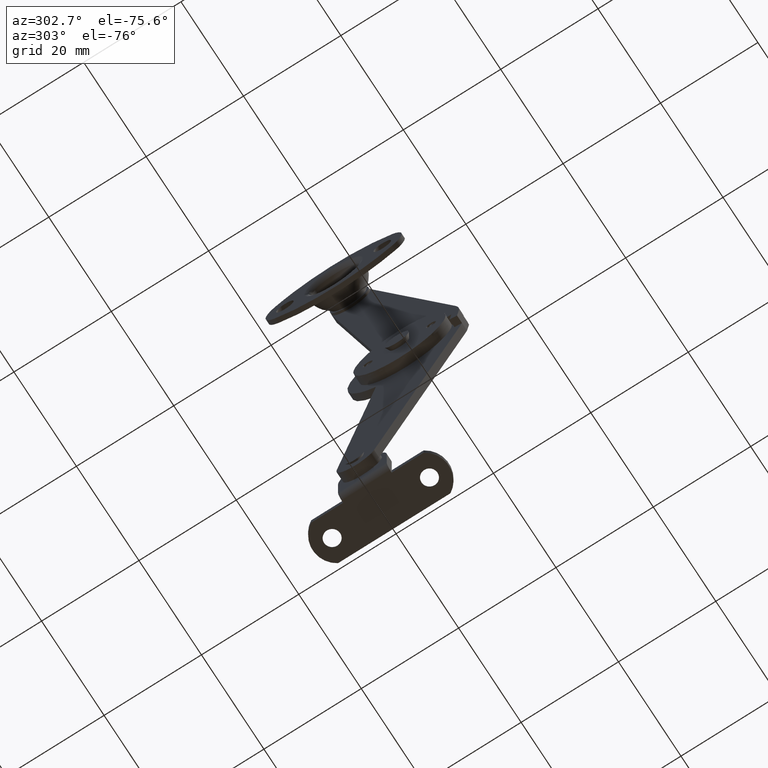
[diagram: clean part render]
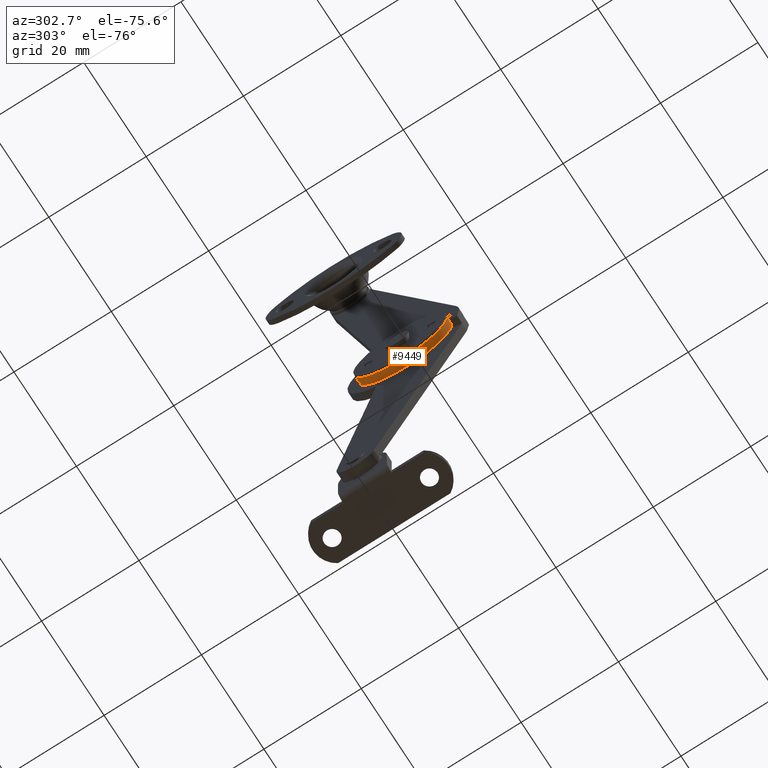
[diagram: same view with one face highlighted and labeled with its STEP entity id]
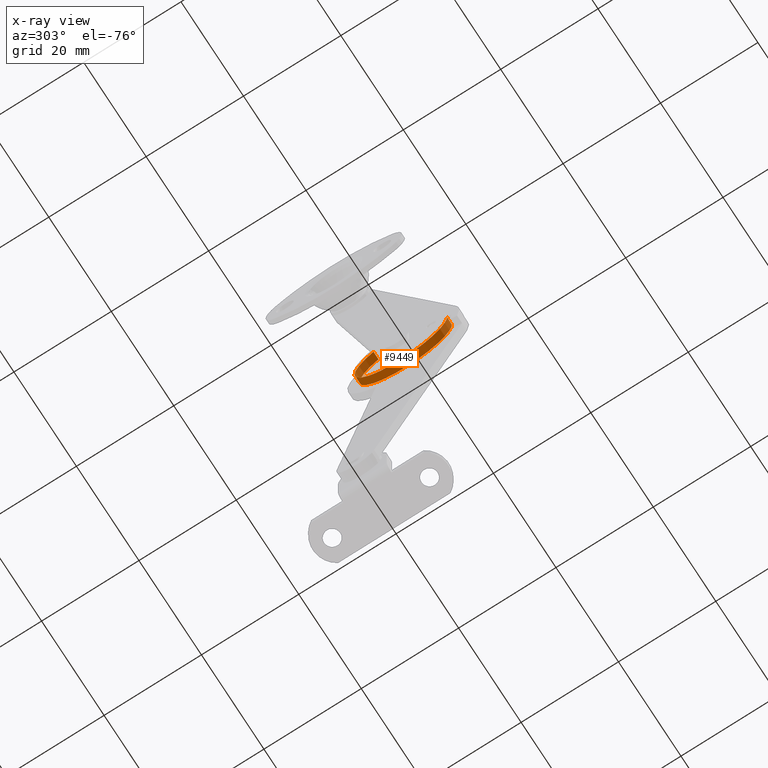
[diagram: x-ray of the same camera — body ghosted, the highlighted face saturated]
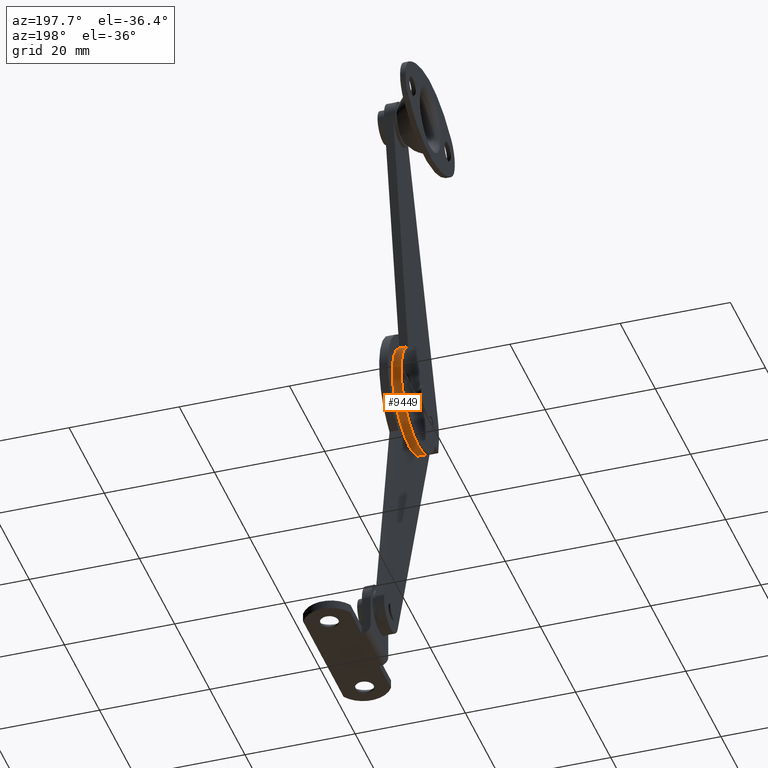
[diagram: same view with one face highlighted and labeled with its STEP entity id]
A machine part, auxiliary view. The second image highlights one B-rep face of the part: STEP entity #9449.
The next image is the same camera in x-ray: the body ghosted, the highlighted face saturated — about 0% of this face is hidden behind the body in this view.
A second angle (auxiliary view) of the same face is appended — the face is thin or edge-on in the first view.
In plain terms, the highlighted face is a freeform B-spline surface patch.
Its self-contained STEP definition (entity closure, byte-faithful):
#9138=CARTESIAN_POINT('',(7.099998474121129,-4.656469198437160,7.680902571423180));
#9139=VERTEX_POINT('',#9138);
#9193=CARTESIAN_POINT('',(7.099998474121129,-19.746973262321148,0.0));
#9194=VERTEX_POINT('',#9193);
#9200=CARTESIAN_POINT('',(7.099998474121129,-5.937671783386525,-8.466399515948522));
#9201=VERTEX_POINT('',#9200);
#9202=CARTESIAN_POINT('',(7.099998474121129,-5.937671783386525,-8.466399515948522));
#9203=CARTESIAN_POINT('',(7.099998474121126,-6.792765926861126,-8.902132865718677));
#9204=CARTESIAN_POINT('',(7.099998474121152,-8.248166251876242,-9.382531316984084));
#9205=CARTESIAN_POINT('',(7.099998474121123,-10.118233941333081,-9.532328218362419));
#9206=CARTESIAN_POINT('',(7.099998474121121,-11.506591075476180,-9.444022556427136));
#9207=CARTESIAN_POINT('',(7.099998474121212,-12.972556351994850,-9.154412024375423));
#9208=CARTESIAN_POINT('',(7.099998474121103,-14.437592945187710,-8.578520081182052));
#9209=CARTESIAN_POINT('',(7.099998474121255,-15.713832467236040,-7.802932220806820));
#9210=CARTESIAN_POINT('',(7.099998474121057,-16.798189160932679,-6.930407867204266));
#9211=CARTESIAN_POINT('',(7.099998474121031,-17.928593901230389,-5.696749205172292));
#9212=CARTESIAN_POINT('',(7.099998474121729,-18.872893305275390,-4.129593354959606));
#9213=CARTESIAN_POINT('',(7.099998474119913,-19.571842691608090,-2.171759585156887));
#9214=CARTESIAN_POINT('',(7.099998474122005,-19.747214713384150,-0.808158609076318));
#9215=CARTESIAN_POINT('',(7.099998474121129,-19.746973262321148,0.0));
#9216=B_SPLINE_CURVE_WITH_KNOTS('',3,(#9202,#9203,#9204,#9205,#9206,#9207,#9208,#9209,#9210,#9211,#9212,#9213,#9214,#9215),.UNSPECIFIED.,.F.,.U.,(4,1,1,1,1,1,1,1,1,1,1,4),(0.000000156827639,2.878969226174817,4.545781217665455,5.606476340765134,7.045987413509991,9.015814209989779,10.303718137147939,11.515953144163410,13.182768601936660,15.304136416999761,16.970924696439319,19.395336818258659),.UNSPECIFIED.);
#9217=EDGE_CURVE('',#9201,#9194,#9216,.T.);
#9219=CARTESIAN_POINT('',(7.099998474121129,-4.656469198437160,7.680902571423180));
#9220=CARTESIAN_POINT('',(7.099998474121096,-4.084651011808683,7.264896602362007));
#9221=CARTESIAN_POINT('',(7.099998474121176,-3.241013601574929,6.492950154826736));
#9222=CARTESIAN_POINT('',(7.099998474121141,-2.152566395491196,5.062843757351256));
#9223=CARTESIAN_POINT('',(7.099998474121134,-1.462015714799522,3.733485681998762));
#9224=CARTESIAN_POINT('',(7.099998474121154,-1.004372355549417,2.312279250471138));
#9225=CARTESIAN_POINT('',(7.099998474121185,-0.750538268638374,0.917676744498406));
#9226=CARTESIAN_POINT('',(7.099998474120935,-0.716689787224081,-0.730394880951964));
#9227=CARTESIAN_POINT('',(7.099998474121209,-1.027431531463287,-2.531148215712296));
#9228=CARTESIAN_POINT('',(7.099998474121139,-1.608996785036496,-4.047081994452509));
#9229=CARTESIAN_POINT('',(7.099998474121113,-2.416068504831734,-5.450813962760297));
#9230=CARTESIAN_POINT('',(7.099998474121136,-3.375093421408143,-6.633683386537036));
#9231=CARTESIAN_POINT('',(7.099998474121127,-4.623931406962972,-7.707113679351667));
#9232=CARTESIAN_POINT('',(7.099998474121130,-5.487536555237176,-8.237318732758702));
#9233=CARTESIAN_POINT('',(7.099998474121129,-5.937671783386525,-8.466399515948522));
#9234=B_SPLINE_CURVE_WITH_KNOTS('',3,(#9219,#9220,#9221,#9222,#9223,#9224,#9225,#9226,#9227,#9228,#9229,#9230,#9231,#9232,#9233),.UNSPECIFIED.,.F.,.U.,(4,1,1,1,1,1,1,1,1,1,1,1,4),(0.000000156761537,2.121357668736543,3.409327073358714,5.379178993446605,6.591412417111384,7.879395379607942,9.621969746225933,11.515957234977281,13.334296848343991,14.470746073259971,16.364844842030461,17.880121771183092,19.395343708183489),.UNSPECIFIED.);
#9235=EDGE_CURVE('',#9139,#9201,#9234,.T.);
#9277=CARTESIAN_POINT('',(5.500000000000000,-4.656469198437160,7.680902571423180));
#9278=VERTEX_POINT('',#9277);
#9286=CARTESIAN_POINT('',(5.499999999999999,-5.937671783386525,-8.466399515948522));
#9287=VERTEX_POINT('',#9286);
#9288=CARTESIAN_POINT('',(5.500000000000000,-4.656469198437160,7.680902571423180));
#9289=CARTESIAN_POINT('',(5.499999999999973,-4.084651011807093,7.264896602368970));
#9290=CARTESIAN_POINT('',(5.500000000000036,-3.241013601519640,6.492950154691396));
#9291=CARTESIAN_POINT('',(5.500000000000007,-2.152566395951574,5.062843758287658));
#9292=CARTESIAN_POINT('',(5.499999999999998,-1.462015713054158,3.733485678847794));
#9293=CARTESIAN_POINT('',(5.500000000000020,-1.004372364598724,2.312279258143140));
#9294=CARTESIAN_POINT('',(5.500000000000053,-0.750535232746580,0.917676430678448));
#9295=CARTESIAN_POINT('',(5.499999999999806,-0.721408964953625,-0.502189237663793));
#9296=CARTESIAN_POINT('',(5.500000000000116,-0.936008836471562,-2.081933048648359));
#9297=CARTESIAN_POINT('',(5.499999999999976,-1.407228399484166,-3.635720847857526));
#9298=CARTESIAN_POINT('',(5.499999999999999,-2.272166385233409,-5.273395056394688));
#9299=CARTESIAN_POINT('',(5.499999999999996,-3.375103661798826,-6.633681552683249));
#9300=CARTESIAN_POINT('',(5.500000000000002,-4.623929922219357,-7.707113943968851));
#9301=CARTESIAN_POINT('',(5.499999999999996,-5.487536552884308,-8.237318733680768));
#9302=CARTESIAN_POINT('',(5.499999999999999,-5.937671783386525,-8.466399515948522));
#9303=B_SPLINE_CURVE_WITH_KNOTS('',3,(#9288,#9289,#9290,#9291,#9292,#9293,#9294,#9295,#9296,#9297,#9298,#9299,#9300,#9301,#9302),.UNSPECIFIED.,.F.,.U.,(4,1,1,1,1,1,1,1,1,1,1,1,4),(0.000000156761537,2.121357668736543,3.409327073358714,5.379178993446605,6.591412417111384,7.879395379607942,9.621969746225933,10.834074916220420,12.652411353417040,14.470746073259971,16.364844842030461,17.880121771183092,19.395343708183489),.UNSPECIFIED.);
#9304=EDGE_CURVE('',#9278,#9287,#9303,.T.);
#9306=CARTESIAN_POINT('',(5.500000000000000,-19.746973262321148,0.0));
#9307=VERTEX_POINT('',#9306);
#9308=CARTESIAN_POINT('',(5.499999999999999,-5.937671783386525,-8.466399515948522));
#9309=CARTESIAN_POINT('',(5.499999999999987,-6.792772649472320,-8.902132361490166));
#9310=CARTESIAN_POINT('',(5.500000000000027,-8.151128555648548,-9.350480565864237));
#9311=CARTESIAN_POINT('',(5.499999999999986,-10.117019030359890,-9.539590850383560));
#9312=CARTESIAN_POINT('',(5.500000000000011,-11.685666573187460,-9.439882375615060));
#9313=CARTESIAN_POINT('',(5.500000000000023,-13.237431192143340,-9.061811780813521));
#9314=CARTESIAN_POINT('',(5.500000000000003,-14.588991001683830,-8.486433410271800));
#9315=CARTESIAN_POINT('',(5.500000000000096,-15.713838002498269,-7.802945739616258));
#9316=CARTESIAN_POINT('',(5.499999999999939,-16.798189393764240,-6.930408458818000));
#9317=CARTESIAN_POINT('',(5.499999999999931,-17.928593793754700,-5.696748932093536));
#9318=CARTESIAN_POINT('',(5.500000000000460,-18.872893340680498,-4.129593444917915));
#9319=CARTESIAN_POINT('',(5.499999999999063,-19.571842687211230,-2.171759573985305));
#9320=CARTESIAN_POINT('',(5.500000000000679,-19.747214712771179,-0.808158607518805));
#9321=CARTESIAN_POINT('',(5.500000000000000,-19.746973262321148,0.0));
#9322=B_SPLINE_CURVE_WITH_KNOTS('',3,(#9308,#9309,#9310,#9311,#9312,#9313,#9314,#9315,#9316,#9317,#9318,#9319,#9320,#9321),.UNSPECIFIED.,.F.,.U.,(4,1,1,1,1,1,1,1,1,1,1,4),(0.000000156827639,2.878969226174817,4.242729994087719,5.909530246744476,7.576342603880477,9.015814209989779,10.303718137147939,11.515953144163410,13.182768601936660,15.304136416999761,16.970924696439319,19.395336818258659),.UNSPECIFIED.);
#9323=EDGE_CURVE('',#9287,#9307,#9322,.T.);
#9411=CARTESIAN_POINT('',(5.460000038146971,-4.723709736650718,7.729395838356148));
#9412=CARTESIAN_POINT('',(7.140998435020483,-4.723709736650718,7.729395838356148));
#9413=CARTESIAN_POINT('',(5.460000038146971,1.647912493292650,3.176368745687395));
#9414=CARTESIAN_POINT('',(7.140998435020483,1.647912493292650,3.176368745687395));
#9415=CARTESIAN_POINT('',(5.460000038146971,-1.605699831230326,-3.946947363358754));
#9416=CARTESIAN_POINT('',(7.140998435020483,-1.605699831230326,-3.946947363358754));
#9417=CARTESIAN_POINT('',(5.460000038146971,-4.859312155753305,-11.070263472404902));
#9418=CARTESIAN_POINT('',(7.140998435020483,-4.859312155753305,-11.070263472404902));
#9419=CARTESIAN_POINT('',(5.460000038146971,-12.472571383670619,-9.235621960769462));
#9420=CARTESIAN_POINT('',(7.140998435020483,-12.472571383670619,-9.235621960769462));
#9421=CARTESIAN_POINT('',(5.460000038146971,-20.085830611587941,-7.400980449134023));
#9422=CARTESIAN_POINT('',(7.140998435020483,-20.085830611587941,-7.400980449134023));
#9423=CARTESIAN_POINT('',(5.460000038146971,-19.737574976705190,0.422467867334657));
#9424=CARTESIAN_POINT('',(7.140998435020483,-19.737574976705190,0.422467867334657));
#9432=(BOUNDED_SURFACE()B_SPLINE_SURFACE(1,2,((#9411,#9413,#9415,#9417,#9419,#9421,#9423),(#9412,#9414,#9416,#9418,#9420,#9422,#9424)),.UNSPECIFIED.,.F.,.F.,.U.)B_SPLINE_SURFACE_WITH_KNOTS((2,2),(3,2,2,3),(0.0,1.0),(0.0,13.643394089923399,27.286788179846798,40.930182269770192),.UNSPECIFIED.)GEOMETRIC_REPRESENTATION_ITEM()RATIONAL_B_SPLINE_SURFACE(((1.0,0.771624583387720,1.0,0.771624583387720,1.0,0.771624583387720,1.0),(1.0,0.771624583387720,1.0,0.771624583387720,1.0,0.771624583387720,1.0)))REPRESENTATION_ITEM('')SURFACE());
#9433=ORIENTED_EDGE('',*,*,#9235,.T.);
#9434=ORIENTED_EDGE('',*,*,#9217,.T.);
#9435=CARTESIAN_POINT('',(5.500000000000000,-19.746973262321148,0.0));
#9436=CARTESIAN_POINT('',(7.099998474121129,-19.746973262321148,0.0));
#9437=QUASI_UNIFORM_CURVE('',1,(#9435,#9436),.UNSPECIFIED.,.F.,.U.);
#9438=EDGE_CURVE('',#9307,#9194,#9437,.T.);
#9439=ORIENTED_EDGE('',*,*,#9438,.F.);
#9440=ORIENTED_EDGE('',*,*,#9323,.F.);
#9441=ORIENTED_EDGE('',*,*,#9304,.F.);
#9442=CARTESIAN_POINT('',(5.500000000000000,-4.656469198437160,7.680902571423180));
#9443=CARTESIAN_POINT('',(7.099998474121129,-4.656469198437160,7.680902571423180));
#9444=QUASI_UNIFORM_CURVE('',1,(#9442,#9443),.UNSPECIFIED.,.F.,.U.);
#9445=EDGE_CURVE('',#9278,#9139,#9444,.T.);
#9446=ORIENTED_EDGE('',*,*,#9445,.T.);
#9447=EDGE_LOOP('',(#9433,#9434,#9439,#9440,#9441,#9446));
#9448=FACE_OUTER_BOUND('',#9447,.T.);
#9449=ADVANCED_FACE('',(#9448),#9432,.T.);